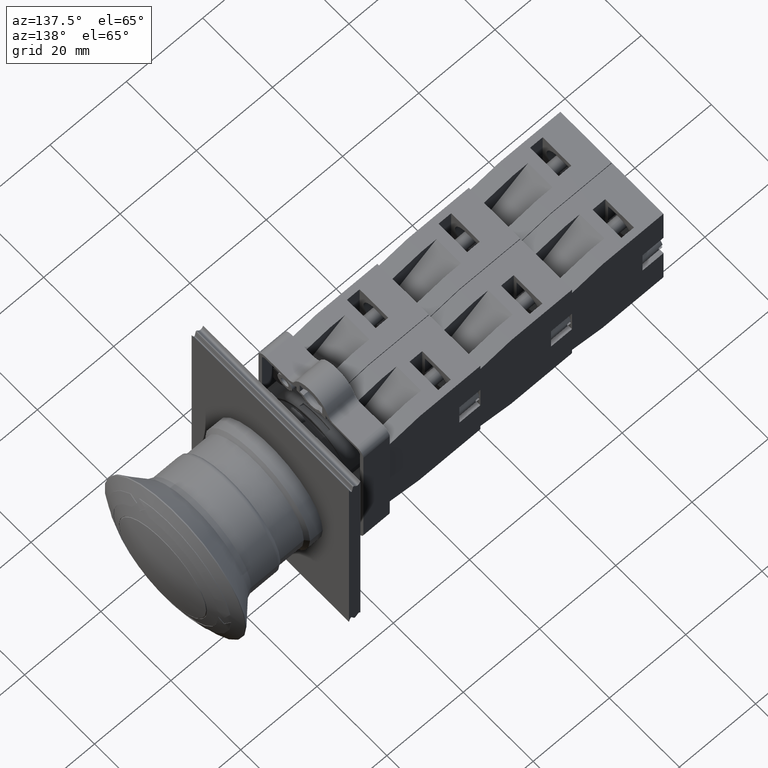
[diagram: clean part render]
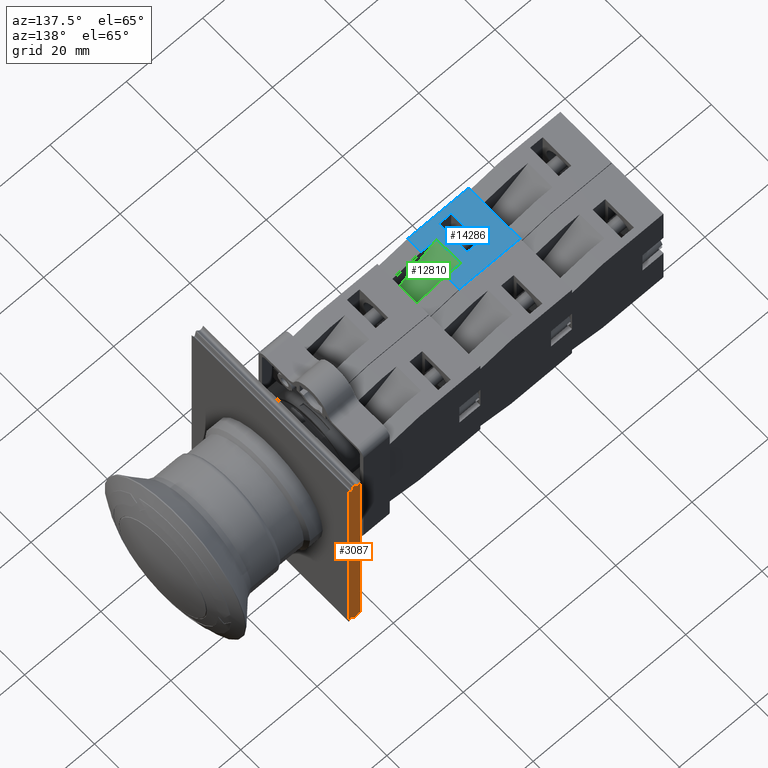
[diagram: same view with three faces highlighted in distinct colors, each labeled with its STEP entity id]
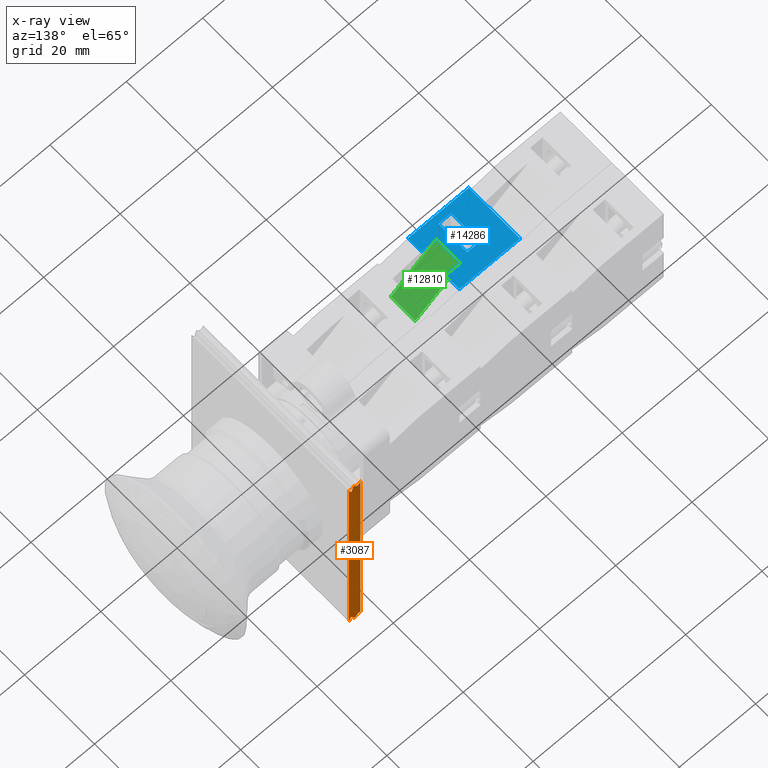
[diagram: x-ray of the same camera — body ghosted, the three highlighted faces saturated]
A machine part, auxiliary view with three faces highlighted in distinct colors.
The next image is the same camera in x-ray (body ghosted, the three faces saturated) — at least one of them is partly hidden behind the body in this view.
Their STEP definitions:

[orange] entity #3087 — the highlighted planar face has unit normal (0, 1, -0).
#2925=CARTESIAN_POINT('',(-15.704183619849179,-2.725398273954287,45.0));
#2926=VERTEX_POINT('',#2925);
#2927=CARTESIAN_POINT('',(-12.704183619849179,-2.725398273954287,45.0));
#2928=VERTEX_POINT('',#2927);
#2929=CARTESIAN_POINT('',(-15.704183619849177,-2.725398273954286,45.0));
#2930=CARTESIAN_POINT('',(-14.667084388146536,-4.961008747338168,45.0));
#2931=CARTESIAN_POINT('',(-13.964099132856656,2.032835085571791,45.0));
#2932=CARTESIAN_POINT('',(-13.683988853155304,-7.243589001706696,45.0));
#2933=CARTESIAN_POINT('',(-12.704183619849175,-2.725398273954286,45.0));
#2934=QUASI_UNIFORM_CURVE('',4,(#2929,#2930,#2931,#2932,#2933),.UNSPECIFIED.,.F.,.U.);
#2935=EDGE_CURVE('',#2926,#2928,#2934,.T.);
#2969=CARTESIAN_POINT('',(-12.704183619849172,-62.725398273954283,45.0));
#2970=VERTEX_POINT('',#2969);
#2971=CARTESIAN_POINT('',(-12.704183619849179,-2.725398273954287,45.0));
#2972=DIRECTION('',(0.0,-1.0,0.0));
#2973=VECTOR('',#2972,60.0);
#2974=LINE('',#2971,#2973);
#2975=EDGE_CURVE('',#2928,#2970,#2974,.T.);
#3009=CARTESIAN_POINT('',(-15.704183619849179,-62.725398273954283,45.0));
#3010=VERTEX_POINT('',#3009);
#3011=CARTESIAN_POINT('',(-12.704183619849177,-62.725398273954298,45.0));
#3012=CARTESIAN_POINT('',(-14.371498841514271,-57.028426828334801,45.0));
#3013=CARTESIAN_POINT('',(-13.047229203726467,-69.825373706267470,45.0));
#3014=CARTESIAN_POINT('',(-14.283734517597093,-58.710287807173117,45.0));
#3015=CARTESIAN_POINT('',(-15.704183619849182,-62.725398273954283,45.0));
#3016=QUASI_UNIFORM_CURVE('',4,(#3011,#3012,#3013,#3014,#3015),.UNSPECIFIED.,.F.,.U.);
#3017=EDGE_CURVE('',#2970,#3010,#3016,.T.);
#3044=CARTESIAN_POINT('',(-15.704183619849179,-62.725398273954283,45.0));
#3045=DIRECTION('',(0.0,1.0,0.0));
#3046=VECTOR('',#3045,60.0);
#3047=LINE('',#3044,#3046);
#3048=EDGE_CURVE('',#3010,#2926,#3047,.T.);
#3076=CARTESIAN_POINT('',(-14.194110455510163,-33.005767774691193,45.0));
#3077=DIRECTION('',(0.0,0.0,1.0));
#3078=DIRECTION('',(1.0,0.0,0.0));
#3079=AXIS2_PLACEMENT_3D('',#3076,#3077,#3078);
#3080=PLANE('',#3079);
#3081=ORIENTED_EDGE('',*,*,#2935,.F.);
#3082=ORIENTED_EDGE('',*,*,#3048,.F.);
#3083=ORIENTED_EDGE('',*,*,#3017,.F.);
#3084=ORIENTED_EDGE('',*,*,#2975,.F.);
#3085=EDGE_LOOP('',(#3081,#3082,#3083,#3084));
#3086=FACE_OUTER_BOUND('',#3085,.T.);
#3087=ADVANCED_FACE('',(#3086),#3080,.T.);

[blue] entity #14286 — the highlighted planar face has unit normal (-0, -0, 1).
#12747=CARTESIAN_POINT('',(-15.936741828918466,7.797073323279626,10.850000000000000));
#12748=VERTEX_POINT('',#12747);
#12763=CARTESIAN_POINT('',(-15.936741828918466,11.797073323279626,10.850000000000000));
#12764=VERTEX_POINT('',#12763);
#12771=CARTESIAN_POINT('',(-15.936741828918466,7.797073323279626,10.850000000000000));
#12772=DIRECTION('',(0.0,1.0,0.0));
#12773=VECTOR('',#12772,4.0);
#12774=LINE('',#12771,#12773);
#12775=EDGE_CURVE('',#12748,#12764,#12774,.T.);
#12785=CARTESIAN_POINT('',(-15.936741828918466,11.797073323279626,3.850000000000001));
#12786=VERTEX_POINT('',#12785);
#12795=CARTESIAN_POINT('',(-15.936741828918466,11.797073323279626,10.850000000000000));
#12796=DIRECTION('',(0.0,0.0,-1.0));
#12797=VECTOR('',#12796,6.999999999999999);
#12798=LINE('',#12795,#12797);
#12799=EDGE_CURVE('',#12764,#12786,#12798,.T.);
#12816=CARTESIAN_POINT('',(-15.936741828918466,7.797073323279631,3.850000000000000));
#12817=VERTEX_POINT('',#12816);
#12826=CARTESIAN_POINT('',(-15.936741828918466,11.797073323279626,3.850000000000001));
#12827=DIRECTION('',(0.0,-1.0,0.0));
#12828=VECTOR('',#12827,3.999999999999996);
#12829=LINE('',#12826,#12828);
#12830=EDGE_CURVE('',#12786,#12817,#12829,.T.);
#12966=CARTESIAN_POINT('',(-15.936741828918466,7.797073323279626,14.699999999999999));
#12967=VERTEX_POINT('',#12966);
#12968=CARTESIAN_POINT('',(-15.936741828918466,7.797073323279626,10.850000000000000));
#12969=DIRECTION('',(0.0,0.0,1.0));
#12970=VECTOR('',#12969,3.850000000000000);
#12971=LINE('',#12968,#12970);
#12972=EDGE_CURVE('',#12748,#12967,#12971,.T.);
#13394=CARTESIAN_POINT('',(-15.936741828918466,17.597073323279638,4.800000000000001));
#13395=VERTEX_POINT('',#13394);
#13402=CARTESIAN_POINT('',(-15.936741828918466,17.597073323279638,13.0));
#13403=VERTEX_POINT('',#13402);
#13404=CARTESIAN_POINT('',(-15.936741828918466,17.597073323279638,13.0));
#13405=DIRECTION('',(0.0,0.0,-1.0));
#13406=VECTOR('',#13405,8.199999999999999);
#13407=LINE('',#13404,#13406);
#13408=EDGE_CURVE('',#13403,#13395,#13407,.T.);
#13485=CARTESIAN_POINT('',(-15.936741828918475,14.297073323279639,13.0));
#13486=VERTEX_POINT('',#13485);
#13487=CARTESIAN_POINT('',(-15.936741828918475,14.297073323279639,13.0));
#13488=DIRECTION('',(0.0,1.0,0.0));
#13489=VECTOR('',#13488,3.299999999999999);
#13490=LINE('',#13487,#13489);
#13491=EDGE_CURVE('',#13486,#13403,#13490,.T.);
#13703=CARTESIAN_POINT('',(-15.936741828918475,14.297073323279637,4.800000000000002));
#13704=VERTEX_POINT('',#13703);
#13711=CARTESIAN_POINT('',(-15.936741828918466,17.597073323279638,4.800000000000001));
#13712=DIRECTION('',(0.0,-1.0,0.0));
#13713=VECTOR('',#13712,3.300000000000001);
#13714=LINE('',#13711,#13713);
#13715=EDGE_CURVE('',#13395,#13704,#13714,.T.);
#13960=CARTESIAN_POINT('',(-15.936741828918475,14.297073323279637,4.800000000000002));
#13961=DIRECTION('',(0.0,0.0,1.0));
#13962=VECTOR('',#13961,8.199999999999999);
#13963=LINE('',#13960,#13962);
#13964=EDGE_CURVE('',#13704,#13486,#13963,.T.);
#14198=CARTESIAN_POINT('',(-15.936741828918466,23.797073323279626,14.699999999999999));
#14199=VERTEX_POINT('',#14198);
#14206=CARTESIAN_POINT('',(-15.936741828918466,23.797073323279626,0.0));
#14207=VERTEX_POINT('',#14206);
#14208=CARTESIAN_POINT('',(-15.936741828918466,23.797073323279626,0.0));
#14209=DIRECTION('',(0.0,0.0,1.0));
#14210=VECTOR('',#14209,14.699999999999999);
#14211=LINE('',#14208,#14210);
#14212=EDGE_CURVE('',#14207,#14199,#14211,.T.);
#14248=CARTESIAN_POINT('',(-15.936741828918466,23.797073323279626,0.0));
#14249=DIRECTION('',(1.0,0.0,0.0));
#14250=DIRECTION('',(0.0,0.0,-1.0));
#14251=AXIS2_PLACEMENT_3D('',#14248,#14249,#14250);
#14252=PLANE('',#14251);
#14253=ORIENTED_EDGE('',*,*,#12830,.T.);
#14254=CARTESIAN_POINT('',(-15.936741828918466,7.797073323279626,0.0));
#14255=VERTEX_POINT('',#14254);
#14256=CARTESIAN_POINT('',(-15.936741828918466,7.797073323279626,0.0));
#14257=DIRECTION('',(0.0,0.0,1.0));
#14258=VECTOR('',#14257,3.850000000000000);
#14259=LINE('',#14256,#14258);
#14260=EDGE_CURVE('',#14255,#12817,#14259,.T.);
#14261=ORIENTED_EDGE('',*,*,#14260,.F.);
#14262=CARTESIAN_POINT('',(-15.936741828918466,23.797073323279626,0.0));
#14263=DIRECTION('',(0.0,-1.0,0.0));
#14264=VECTOR('',#14263,16.0);
#14265=LINE('',#14262,#14264);
#14266=EDGE_CURVE('',#14207,#14255,#14265,.T.);
#14267=ORIENTED_EDGE('',*,*,#14266,.F.);
#14268=ORIENTED_EDGE('',*,*,#14212,.T.);
#14269=CARTESIAN_POINT('',(-15.936741828918466,23.797073323279626,14.699999999999999));
#14270=DIRECTION('',(0.0,-1.0,0.0));
#14271=VECTOR('',#14270,16.0);
#14272=LINE('',#14269,#14271);
#14273=EDGE_CURVE('',#14199,#12967,#14272,.T.);
#14274=ORIENTED_EDGE('',*,*,#14273,.T.);
#14275=ORIENTED_EDGE('',*,*,#12972,.F.);
#14276=ORIENTED_EDGE('',*,*,#12775,.T.);
#14277=ORIENTED_EDGE('',*,*,#12799,.T.);
#14278=EDGE_LOOP('',(#14253,#14261,#14267,#14268,#14274,#14275,#14276,#14277));
#14279=FACE_OUTER_BOUND('',#14278,.T.);
#14280=ORIENTED_EDGE('',*,*,#13715,.T.);
#14281=ORIENTED_EDGE('',*,*,#13964,.T.);
#14282=ORIENTED_EDGE('',*,*,#13491,.T.);
#14283=ORIENTED_EDGE('',*,*,#13408,.T.);
#14284=EDGE_LOOP('',(#14280,#14281,#14282,#14283));
#14285=FACE_BOUND('',#14284,.T.);
#14286=ADVANCED_FACE('',(#14279,#14285),#14252,.T.);

[green] entity #12810 — the highlighted planar face has unit normal (-0.6, 0, -0.8).
#12755=CARTESIAN_POINT('',(-24.936741828918464,-0.202926676720378,10.850000000000000));
#12756=VERTEX_POINT('',#12755);
#12763=CARTESIAN_POINT('',(-15.936741828918466,11.797073323279626,10.850000000000000));
#12764=VERTEX_POINT('',#12763);
#12765=CARTESIAN_POINT('',(-24.936741828918464,-0.202926676720378,10.850000000000000));
#12766=DIRECTION('',(0.600000000000000,0.800000000000000,0.0));
#12767=VECTOR('',#12766,15.000000000000002);
#12768=LINE('',#12765,#12767);
#12769=EDGE_CURVE('',#12756,#12764,#12768,.T.);
#12780=CARTESIAN_POINT('',(-15.936741828918466,11.797073323279626,7.350000000000000));
#12781=DIRECTION('',(-0.800000000000000,0.600000000000000,0.0));
#12782=DIRECTION('',(0.0,0.0,1.0));
#12783=AXIS2_PLACEMENT_3D('',#12780,#12781,#12782);
#12784=PLANE('',#12783);
#12785=CARTESIAN_POINT('',(-15.936741828918466,11.797073323279626,3.850000000000001));
#12786=VERTEX_POINT('',#12785);
#12787=CARTESIAN_POINT('',(-24.936741828918464,-0.202926676720378,3.850000000000001));
#12788=VERTEX_POINT('',#12787);
#12789=CARTESIAN_POINT('',(-15.936741828918466,11.797073323279626,3.850000000000001));
#12790=DIRECTION('',(-0.600000000000000,-0.800000000000000,0.0));
#12791=VECTOR('',#12790,15.000000000000002);
#12792=LINE('',#12789,#12791);
#12793=EDGE_CURVE('',#12786,#12788,#12792,.T.);
#12794=ORIENTED_EDGE('',*,*,#12793,.F.);
#12795=CARTESIAN_POINT('',(-15.936741828918466,11.797073323279626,10.850000000000000));
#12796=DIRECTION('',(0.0,0.0,-1.0));
#12797=VECTOR('',#12796,6.999999999999999);
#12798=LINE('',#12795,#12797);
#12799=EDGE_CURVE('',#12764,#12786,#12798,.T.);
#12800=ORIENTED_EDGE('',*,*,#12799,.F.);
#12801=ORIENTED_EDGE('',*,*,#12769,.F.);
#12802=CARTESIAN_POINT('',(-24.936741828918464,-0.202926676720378,3.850000000000001));
#12803=DIRECTION('',(0.0,0.0,1.0));
#12804=VECTOR('',#12803,6.999999999999999);
#12805=LINE('',#12802,#12804);
#12806=EDGE_CURVE('',#12788,#12756,#12805,.T.);
#12807=ORIENTED_EDGE('',*,*,#12806,.F.);
#12808=EDGE_LOOP('',(#12794,#12800,#12801,#12807));
#12809=FACE_OUTER_BOUND('',#12808,.T.);
#12810=ADVANCED_FACE('',(#12809),#12784,.F.);